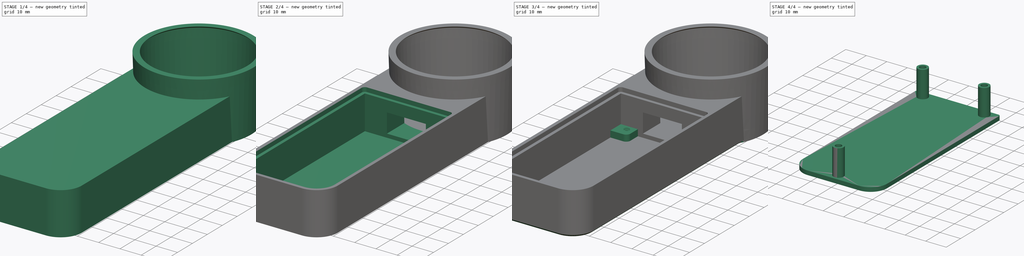
[diagram: build sequence overview — one tinted view per stage of 4, left to right]
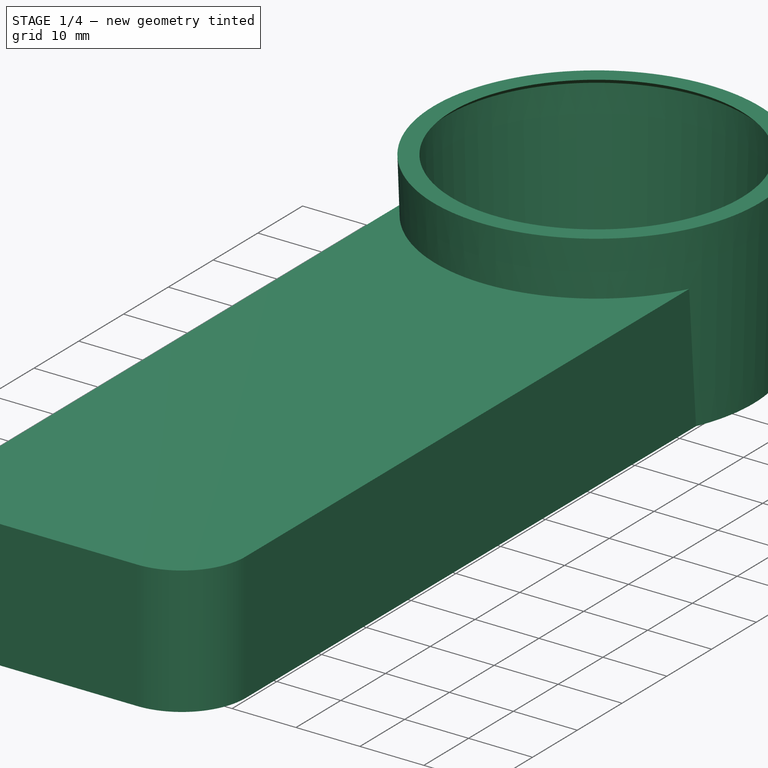
[diagram: stage 1 of 4 — iso view after this stage's code; geometry added in this stage tinted green]
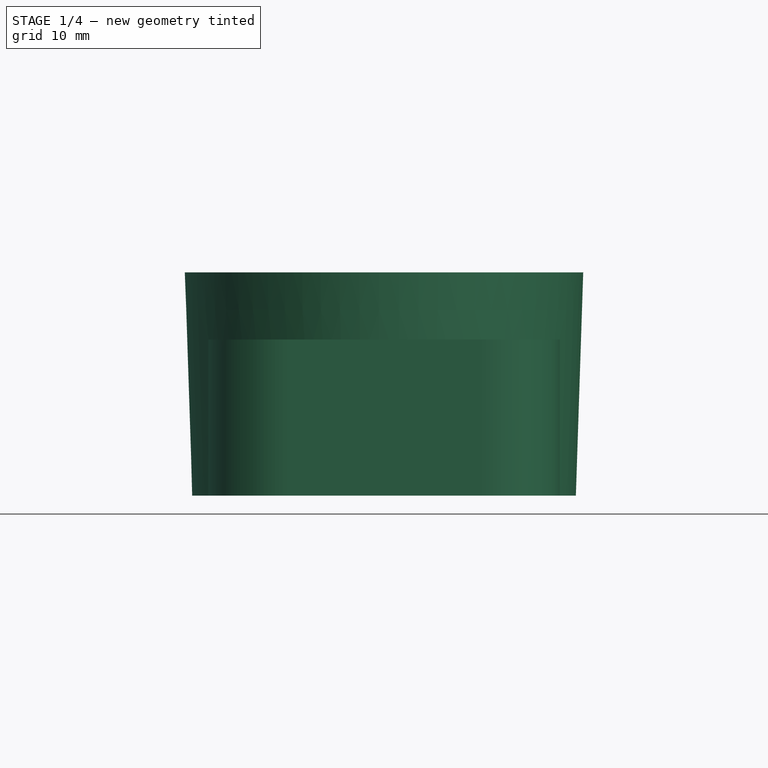
[diagram: stage 1 of 4 — front view after this stage's code; geometry added in this stage tinted green]
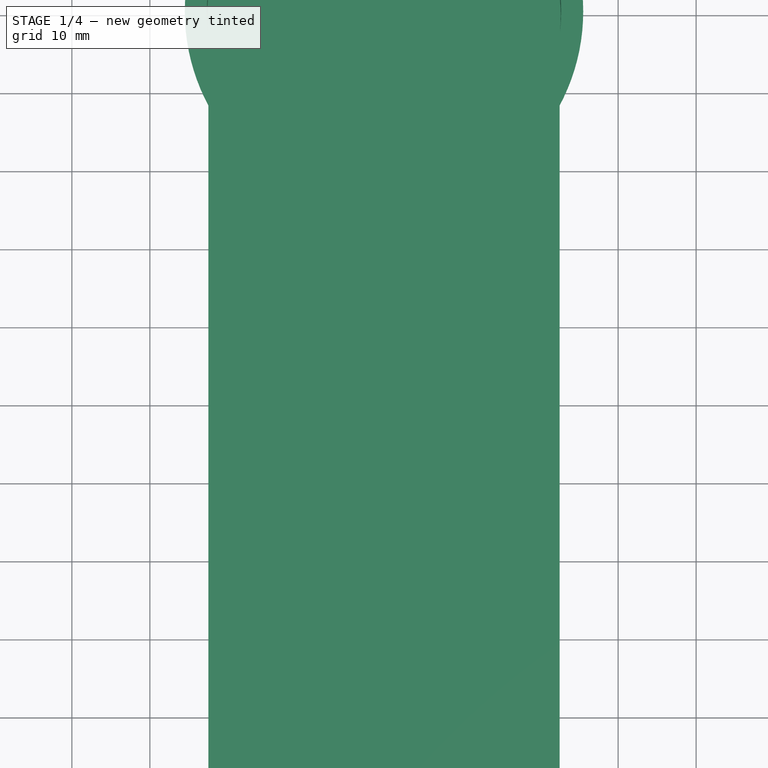
[diagram: stage 1 of 4 — top view after this stage's code; geometry added in this stage tinted green]
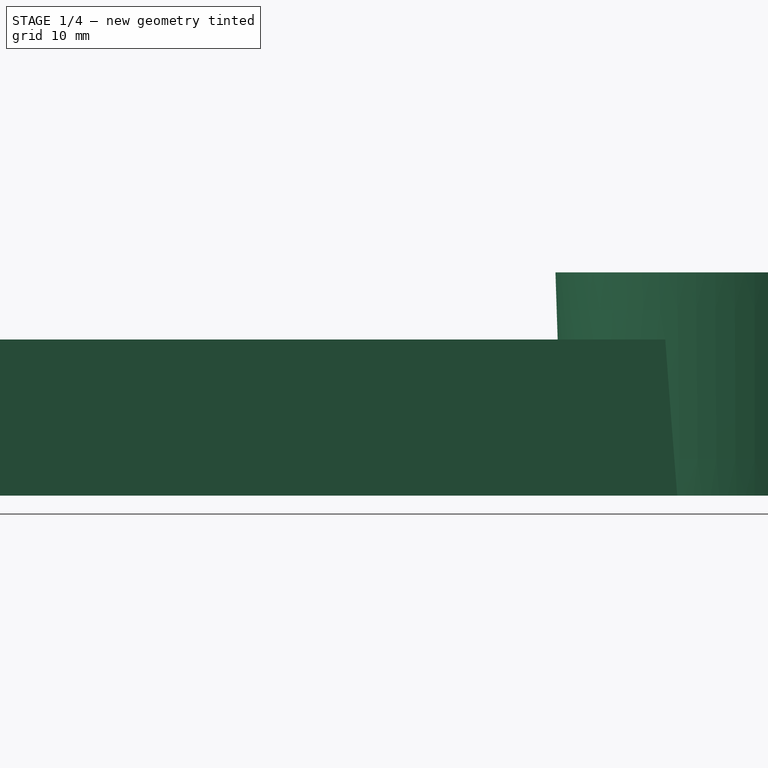
[diagram: stage 1 of 4 — right view after this stage's code; geometry added in this stage tinted green]
FCSTD DOCUMENT  (FreeCAD 1.0R39319 (Git))
Label: LogiLink_WallPlug
License: All rights reserved
LicenseURL: https://en.wikipedia.org/wiki/All_rights_reserved
objects: Sketcher::SketchObject×8, PartDesign::Pad×4, PartDesign::Pocket×3, PartDesign::SubShapeBinder×3, PartDesign::Plane×2, PartDesign::Hole×2, PartDesign::Body×2, Spreadsheet::Sheet×1, PartDesign::Revolution×1, PartDesign::Fillet×1, PartDesign::Chamfer×1
note: 59 computed .brp shape members not serialized (recipe doc carries the construction recipe); baked Part::Feature solids carry a one-line shape summary decoded from their .brp

FEATURE [Spreadsheet::Sheet] Spreadsheet  label="config"
  cells = A1='LogiLink Power Plug; D1='USB cutout; A2='diameter top; B2(d_top)==45 mm; D2='top; E2(usb_top)==2 mm; A3='diameter bottom; B3(d_bottom)==46.7 mm; D3='height; E3(usb_height)==8.5 mm; A4='height; B4(height)==25.8 mm; D4='width; E4(usb_width)==17.8 mm; A5='bottom step height; B5(height_step)==0.8 mm; A6='bottom step diameter; B6(d_step)==43 mm; D6='cutout clearance; E6(usb_clearance)==0.25 mm; A8='clearance; B8(clearance)==0.15 mm; A9='wall thickness; B9(thickness)==2 mm
FEATURE [Sketcher::SketchObject] Sketch
  ArcFitTolerance = 1e-06
  AttachmentSupport = -> [XZ_Plane]
  FullyConstrained = true
  MakeInternals = false
  MapMode = 5
  Placement = pos=(0,0,0) rot=(1,0,0;1.5708rad)
  expr: Constraints[13] = <<config>>.height
  expr: Constraints[14] = <<config>>.height_step
  expr: Constraints[18] = <<config>>.thickness
  expr: Constraints[20] = <<config>>.thickness
  expr: Constraints[21] = <<config>>.d_top / 2 + <<config>>.clearance
  expr: Constraints[22] = <<config>>.d_bottom / 2 + <<config>>.clearance
  sketch-geometry (8):
    g0: LineSegment StartX=0 StartY=0 StartZ=0 EndX=22.65 EndY=0 EndZ=0
    g1: LineSegment StartX=22.65 StartY=0 StartZ=0 EndX=23.5 EndY=25.8 EndZ=0
    g2: LineSegment StartX=23.5 StartY=25.8 StartZ=0 EndX=22.7 EndY=26.6 EndZ=0
    g3: LineSegment StartX=22.7 StartY=26.6 StartZ=0 EndX=25.5274 EndY=26.6 EndZ=0
    g4: LineSegment StartX=25.5274 StartY=26.6 StartZ=0 EndX=24.5852 EndY=-2 EndZ=0
    g5: LineSegment StartX=24.5852 StartY=-2 StartZ=0 EndX=0 EndY=-2 EndZ=0
    g6: LineSegment StartX=0 StartY=-2 StartZ=0 EndX=0 EndY=0 EndZ=0
    g7: LineSegment [constr] StartX=23.5 StartY=25.8 StartZ=0 EndX=25.4989 EndY=25.7341 EndZ=0
  constraints (23):
    c: Coincident(g-1,g0)
    c: PointOnObject(g0,g-1)
    c: Coincident(g0,g1)
    c: Coincident(g1,g2)
    c: Coincident(g2,g3)
    c: Horizontal(g3)
    c: Coincident(g3,g4)
    c: Coincident(g4,g5)
    c: PointOnObject(g5,g-2)
    c: Coincident(g5,g6)
    c: Coincident(g6,g0)
    c: Horizontal(g5)
    c: Parallel(g1,g4)
    c: DistanceY(g0,g1) = 25.8
    c: DistanceY(g1,g2) = 0.8
    c: Coincident(g7,g1)
    c: PointOnObject(g7,g4)
    c: Perpendicular(g4,g7)
    c: Distance(g7,g7) = 2
    c: Angle(g2,g-1) = 0.785398
    c: DistanceY(g6,g6) = 2
    c: DistanceX(g0,g0) = 22.65
    c: DistanceX(g0,g1) = 23.5
FEATURE [PartDesign::Revolution] Revolution
  Angle = 360
  Angle2 = 60
  Axis = (0,2e-16,1)
  Base = (0,0,0)
  Placement = pos=(0,0,0) rot=(1,0,0;1.5708rad)
  Profile = -> Sketch
  ReferenceAxis = -> Sketch [V_Axis]
  Refine = true
  Reversed = true
  Suppressed = false
  Type = 0
FEATURE [Sketcher::SketchObject] Sketch001  label="UsbCutoutSketch"
  ArcFitTolerance = 1e-06
  AttachmentSupport = -> [XZ_Plane]
  FullyConstrained = true
  MakeInternals = false
  MapMode = 5
  Placement = pos=(0,0,0) rot=(1,0,0;1.5708rad)
  expr: Constraints[10] = <<config>>.usb_height + 2 * <<config>>.usb_clearance
  expr: Constraints[11] = <<config>>.usb_width + 2 * <<config>>.usb_clearance
  expr: Constraints[12] = <<config>>.usb_top - <<config>>.usb_clearance
  sketch-geometry (5):
    g0: LineSegment StartX=-9.15 StartY=10.75 StartZ=0 EndX=-9.15 EndY=1.75 EndZ=0
    g1: LineSegment StartX=-9.15 StartY=1.75 StartZ=0 EndX=9.15 EndY=1.75 EndZ=0
    g2: LineSegment StartX=9.15 StartY=1.75 StartZ=0 EndX=9.15 EndY=10.75 EndZ=0
    g3: LineSegment StartX=9.15 StartY=10.75 StartZ=0 EndX=-9.15 EndY=10.75 EndZ=0
    g4: GeomPoint [constr] X=0 Y=6.25 Z=0
  constraints (13):
    c: Coincident(g0,g1)
    c: Coincident(g1,g2)
    c: Coincident(g2,g3)
    c: Coincident(g3,g0)
    c: Vertical(g0)
    c: Vertical(g2)
    c: Horizontal(g1)
    c: Horizontal(g3)
    c: Symmetric(g2,g0,g4)
    c: PointOnObject(g4,g-2)
    c: DistanceY(g2,g2) = 9
    c: DistanceX(g3,g3) = 18.3
    c: DistanceY(g-1,g1) = 1.75
FEATURE [PartDesign::Plane] DatumPlane  label="UsbStablizerDatumPlane"
  AttachmentOffset = pos=(0,0,29.65) rot=(0,0,1;0rad)
  AttachmentSupport = -> [XZ_Plane]
  Length = 61.3094
  MapMode = 5
  Placement = pos=(0,-29.65,6.6e-15) rot=(1,0,0;1.5708rad)
  ResizeMode = 0
  Width = 61.8644
  expr: .AttachmentOffset.Base.z = <<config>>.d_top / 2 + <<config>>.clearance + <<config>>.thickness + 5 mm
FEATURE [Sketcher::SketchObject] Sketch002
  ArcFitTolerance = 1e-06
  AttachmentSupport = -> [DatumPlane]
  FullyConstrained = true
  MakeInternals = false
  MapMode = 5
  Placement = pos=(0,-29.65,6.6e-15) rot=(1,0,0;1.5708rad)
  expr: Constraints[10] = <<config>>.thickness
  expr: Constraints[11] = <<config>>.usb_top + <<config>>.usb_height + 5 mm
  expr: Constraints[12] = <<config>>.usb_width + 10 mm
  sketch-geometry (5):
    g0: LineSegment StartX=-13.9 StartY=15.5 StartZ=0 EndX=-13.9 EndY=-2 EndZ=0
    g1: LineSegment StartX=-13.9 StartY=-2 StartZ=0 EndX=13.9 EndY=-2 EndZ=0
    g2: LineSegment StartX=13.9 StartY=-2 StartZ=0 EndX=13.9 EndY=15.5 EndZ=0
    g3: LineSegment StartX=13.9 StartY=15.5 StartZ=0 EndX=-13.9 EndY=15.5 EndZ=0
    g4: GeomPoint [constr] X=0 Y=6.75 Z=0
  constraints (13):
    c: Coincident(g0,g1)
    c: Coincident(g1,g2)
    c: Coincident(g2,g3)
    c: Coincident(g3,g0)
    c: Vertical(g0)
    c: Vertical(g2)
    c: Horizontal(g1)
    c: Horizontal(g3)
    c: Symmetric(g2,g0,g4)
    c: PointOnObject(g4,g-2)
    c: DistanceY(g1,g-1) = 2
    c: DistanceY(g-1,g2) = 15.5
    c: DistanceX(g3,g3) = 27.8
FEATURE [Sketcher::SketchObject] Sketch003
  ArcFitTolerance = 1e-06
  AttachmentSupport = -> [XY_Plane]
  FullyConstrained = true
  MakeInternals = false
  MapMode = 5
  expr: Constraints[10] = <<config>>.usb_width
  expr: Constraints[11] = <<config>>.d_bottom / 2
  sketch-geometry (15):
    g0: LineSegment StartX=-8.9 StartY=-59.35 StartZ=0 EndX=8.9 EndY=-59.35 EndZ=0
    g1: LineSegment StartX=8.9 StartY=-59.35 StartZ=0 EndX=8.9 EndY=-23.35 EndZ=0
    g2: LineSegment StartX=8.9 StartY=-23.35 StartZ=0 EndX=-8.9 EndY=-23.35 EndZ=0
    g3: LineSegment StartX=-8.9 StartY=-23.35 StartZ=0 EndX=-8.9 EndY=-59.35 EndZ=0
    g4: GeomPoint [constr] X=0 Y=-41.35 Z=0
    g5: LineSegment StartX=-14.25 StartY=-115.85 StartZ=0 EndX=14.25 EndY=-115.85 EndZ=0
    g6: LineSegment StartX=14.25 StartY=-115.85 StartZ=0 EndX=14.25 EndY=-64.35 EndZ=0
    g7: LineSegment StartX=14.25 StartY=-64.35 StartZ=0 EndX=-14.25 EndY=-64.35 EndZ=0
    g8: LineSegment StartX=-14.25 StartY=-64.35 StartZ=0 EndX=-14.25 EndY=-115.85 EndZ=0
    g9: GeomPoint [constr] X=0 Y=-90.1 Z=0
    g10: LineSegment StartX=-5 StartY=-64.35 StartZ=0 EndX=5 EndY=-64.35 EndZ=0
    g11: LineSegment StartX=5 StartY=-64.35 StartZ=0 EndX=5 EndY=-59.35 EndZ=0
    g12: LineSegment StartX=5 StartY=-59.35 StartZ=0 EndX=-5 EndY=-59.35 EndZ=0
    g13: LineSegment StartX=-5 StartY=-59.35 StartZ=0 EndX=-5 EndY=-64.35 EndZ=0
    g14: GeomPoint [constr] X=0 Y=-61.85 Z=0
  constraints (39):
    c: Coincident(g0,g1)
    c: Coincident(g1,g2)
    c: Coincident(g2,g3)
    c: Coincident(g3,g0)
    c: Horizontal(g0)
    c: Horizontal(g2)
    c: Vertical(g1)
    c: Vertical(g3)
    c: Symmetric(g2,g0,g4)
    c: PointOnObject(g4,g-2)
    c: DistanceX(g0,g0) = 17.8
    c: DistanceY(g1,g-1) = 23.35
    c: DistanceY(g1,g1) = 36
    c: Coincident(g5,g6)
    c: Coincident(g6,g7)
    c: Coincident(g7,g8)
    c: Coincident(g8,g5)
    c: Horizontal(g5)
    c: Horizontal(g7)
    c: Vertical(g6)
    c: Vertical(g8)
    c: Symmetric(g7,g5,g9)
    c: PointOnObject(g9,g-2)
    c: DistanceY(g6,g6) = 51.5
    c: DistanceX(g7,g7) = 28.5
    c: Coincident(g10,g11)
    c: Coincident(g11,g12)
    c: Coincident(g12,g13)
    c: Coincident(g13,g10)
    c: Horizontal(g10)
    c: Horizontal(g12)
    c: Vertical(g11)
    c: Vertical(g13)
    c: Symmetric(g12,g10,g14)
    c: PointOnObject(g14,g-2)
    c: PointOnObject(g11,g0)
    c: DistanceX(g10,g10) = 10
    c: PointOnObject(g10,g7)
    c: DistanceY(g11,g11) = 5
FEATURE [PartDesign::Plane] DatumPlane001
  AttachmentOffset = pos=(0,0,120.5) rot=(0,0,1;0rad)
  AttachmentSupport = -> [XZ_Plane]
  Length = 61.3094
  MapMode = 5
  Placement = pos=(0,-120.5,2.68e-14) rot=(1,0,0;1.5708rad)
  ResizeMode = 0
  Width = 61.8644
  expr: .AttachmentOffset.Base.z = <<config>>.d_top / 2 + 98 mm
FEATURE [Sketcher::SketchObject] Sketch004
  ArcFitTolerance = 1e-06
  AttachmentSupport = -> [DatumPlane001]
  FullyConstrained = true
  MakeInternals = false
  MapMode = 5
  Placement = pos=(0,-120.5,2.68e-14) rot=(1,0,0;1.5708rad)
  expr: Constraints[11] = <<config>>.thickness
  expr: Constraints[9] = <<config>>.d_top
  sketch-geometry (5):
    g0: LineSegment StartX=-22.5 StartY=18 StartZ=0 EndX=-22.5 EndY=-2 EndZ=0
    g1: LineSegment StartX=-22.5 StartY=-2 StartZ=0 EndX=22.5 EndY=-2 EndZ=0
    g2: LineSegment StartX=22.5 StartY=-2 StartZ=0 EndX=22.5 EndY=18 EndZ=0
    g3: LineSegment StartX=22.5 StartY=18 StartZ=0 EndX=-22.5 EndY=18 EndZ=0
    g4: GeomPoint [constr] X=-3e-16 Y=8 Z=0
  constraints (13):
    c: Coincident(g0,g1)
    c: Coincident(g1,g2)
    c: Coincident(g2,g3)
    c: Coincident(g3,g0)
    c: Vertical(g0)
    c: Vertical(g2)
    c: Horizontal(g1)
    c: Horizontal(g3)
    c: Symmetric(g2,g0,g4)
    c: Distance(g0,g2) = 45
    c: PointOnObject(g4,g-2)
    c: DistanceY(g1,g-1) = 2
    c: DistanceY(g2,g2) = 20
FEATURE [PartDesign::Pad] Pad
  BaseFeature = -> Revolution
  Direction = (0,-1,2e-16)
  Length = 10
  Length2 = 10
  Placement = pos=(0,0,0) rot=(1,0,0;1.5708rad)
  Profile = -> Sketch004
  ReferenceAxis = -> Sketch004 [N_Axis]
  Refine = true
  Reversed = true
  Suppressed = false
  Type = 2
FEATURE [PartDesign::Fillet] Fillet
  Base = -> Pad [Edge13,Edge18]
  BaseFeature = -> Pad
  Placement = pos=(0,0,0) rot=(1,0,0;1.5708rad)
  Radius = 10
  Refine = true
  SupportTransform = false
  Suppressed = false
  UseAllEdges = false
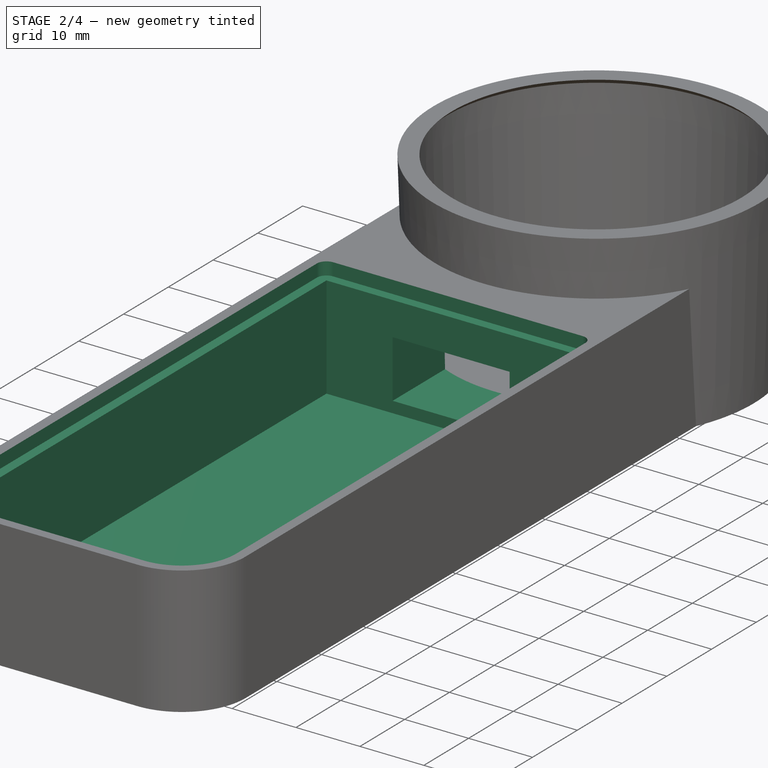
[diagram: stage 2 of 4 — iso view after this stage's code; geometry added in this stage tinted green]
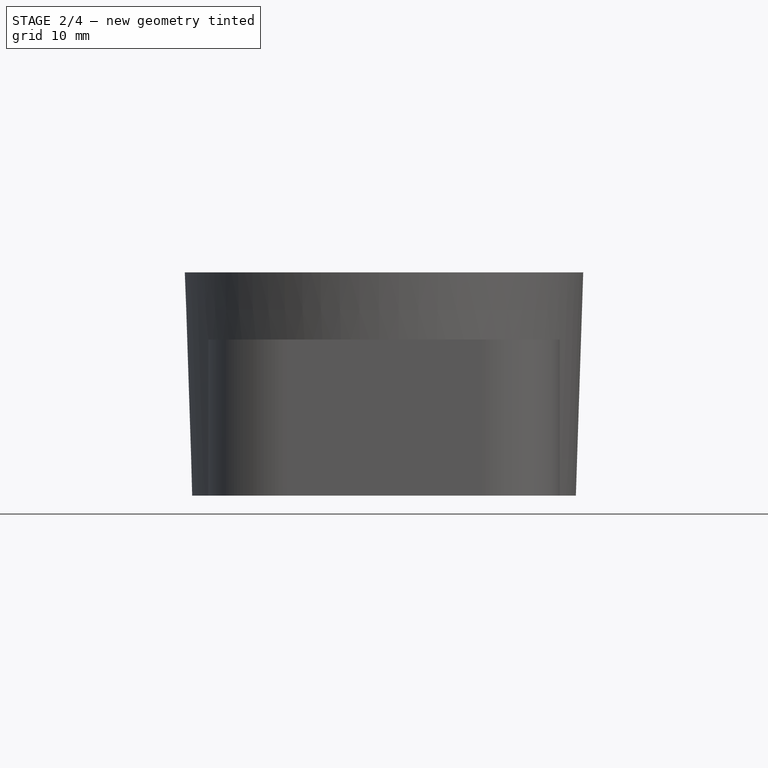
[diagram: stage 2 of 4 — front view after this stage's code; geometry added in this stage tinted green]
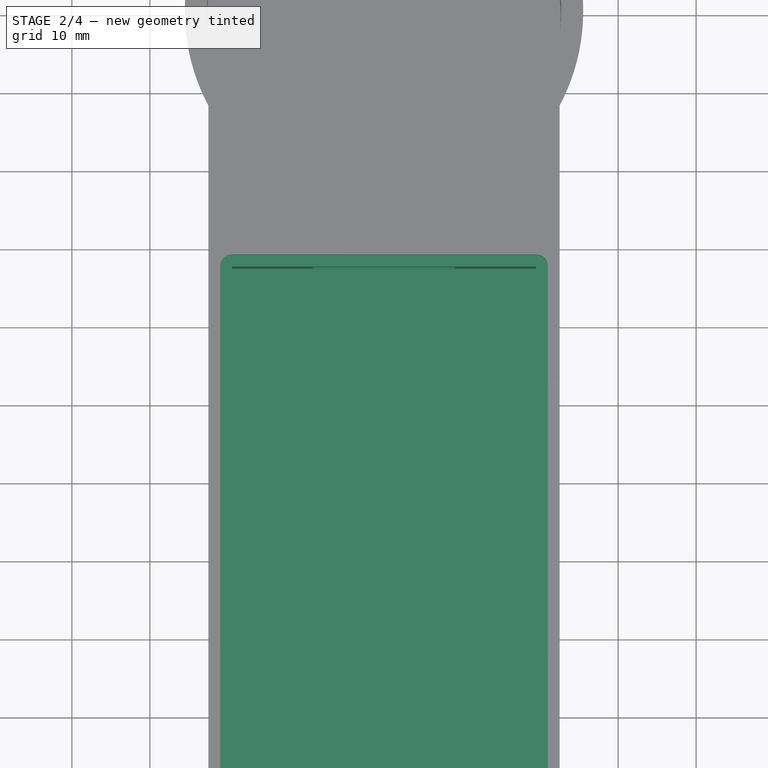
[diagram: stage 2 of 4 — top view after this stage's code; geometry added in this stage tinted green]
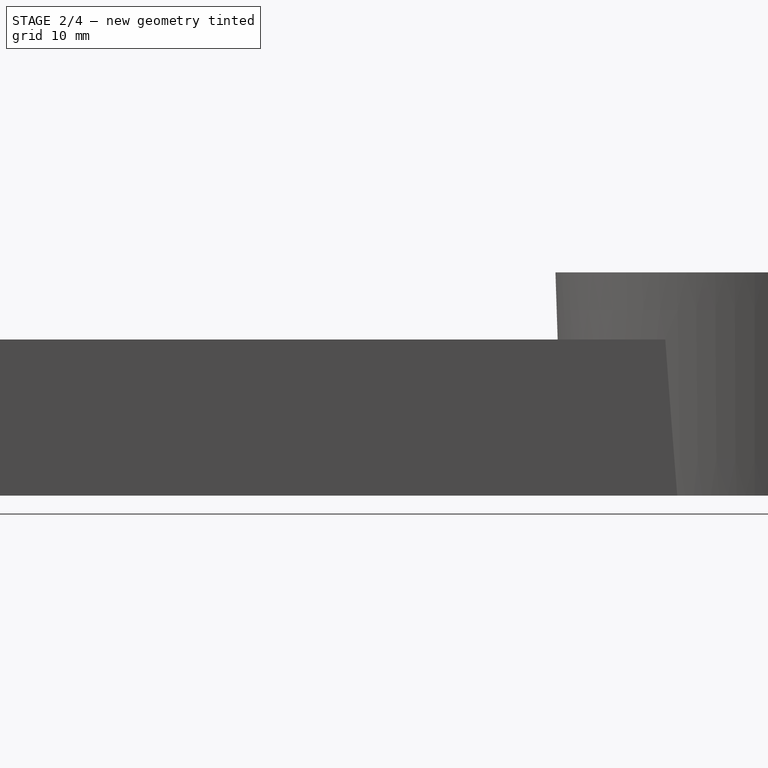
[diagram: stage 2 of 4 — right view after this stage's code; geometry added in this stage tinted green]
FEATURE [Sketcher::SketchObject] Sketch005
  ArcFitTolerance = 1e-06
  AttachmentSupport = -> [XY_Plane]
  ExternalGeometry = -> [Fillet]
  FullyConstrained = true
  MakeInternals = false
  MapMode = 5
  expr: Constraints[8] = <<config>>.d_top / 2 + 10 mm
  sketch-geometry (9):
    g0: LineSegment StartX=-12.5 StartY=-117.5 StartZ=0 EndX=12.5 EndY=-117.5 EndZ=0
    g1: LineSegment StartX=19.5 StartY=-110.5 StartZ=0 EndX=19.5 EndY=-32.5 EndZ=0
    g2: LineSegment StartX=19.5 StartY=-32.5 StartZ=0 EndX=-19.5 EndY=-32.5 EndZ=0
    g3: LineSegment StartX=-19.5 StartY=-32.5 StartZ=0 EndX=-19.5 EndY=-110.5 EndZ=0
    g4: GeomPoint [constr] X=0 Y=-75 Z=0
    g5: ArcOfCircle CenterX=-12.5 CenterY=-110.5 CenterZ=0 NormalX=0 NormalY=0 NormalZ=1 AngleXU=0 Radius=7 StartAngle=3.14159 EndAngle=4.71239
    g6: GeomPoint [constr] X=-19.5 Y=-117.5 Z=0
    g7: ArcOfCircle CenterX=12.5 CenterY=-110.5 CenterZ=0 NormalX=0 NormalY=0 NormalZ=1 AngleXU=0 Radius=7 StartAngle=4.71239 EndAngle=6.28319
    g8: GeomPoint [constr] X=19.5 Y=-117.5 Z=0
  constraints (21):
    c: Coincident(g1,g2)
    c: Coincident(g2,g3)
    c: Horizontal(g0)
    c: Horizontal(g2)
    c: Vertical(g1)
    c: Vertical(g3)
    c: Symmetric(g2,g6,g4)
    c: PointOnObject(g4,g-2)
    c: DistanceY(g1,g-1) = 32.5
    c: DistanceY(g-5,g8) = 3
    c: DistanceX(g8,g-4) = 3
    c: PointOnObject(g6,g3)
    c: PointOnObject(g6,g0)
    c: Tangent(g3,g5) = -1.5708
    c: Tangent(g0,g5) = -1.5708
    c: PointOnObject(g8,g1)
    c: PointOnObject(g8,g0)
    c: Tangent(g1,g7) = -1.5708
    c: Tangent(g0,g7) = -1.5708
    c: Equal(g5,g7)
    c: Radius(g5) = 7
FEATURE [PartDesign::Pocket] Pocket
  BaseFeature = -> Fillet
  Direction = (0,0,-1)
  Length = 5
  Length2 = 5
  Placement = pos=(0,0,0) rot=(1,0,0;1.5708rad)
  Profile = -> Sketch005
  ReferenceAxis = -> Sketch005 [N_Axis]
  Refine = true
  Reversed = true
  Suppressed = false
  Type = 1
FEATURE [PartDesign::Pocket] Pocket001
  BaseFeature = -> Pocket
  Direction = (0,1,-2e-16)
  Length = 40
  Length2 = 5
  Placement = pos=(0,0,0) rot=(1,0,0;1.5708rad)
  Profile = -> Sketch001
  ReferenceAxis = -> Sketch001 [N_Axis]
  Refine = true
  Reversed = true
  Suppressed = false
  Type = 0
FEATURE [PartDesign::SubShapeBinder] Binder
  BindCopyOnChange = 0
  BindMode = 0
  ClaimChildren = false
  Context = -> Body [Binder.]
  Fuse = false
  MakeFace = true
  Offset = 1.5
  OffsetFill = false
  OffsetIntersection = false
  OffsetJoinType = 0
  OffsetOpenResult = false
  PartialLoad = false
  Placement = pos=(0,0,18) rot=(0,0,1;0rad)
  Refine = true
  Relative = true
  Support = -> [Sketch005]
  _Version = 2
FEATURE [PartDesign::Pocket] Pocket002
  BaseFeature = -> Pocket001
  Direction = (0,0,-1)
  Length = 2
  Length2 = 5
  Placement = pos=(0,0,0) rot=(1,0,0;1.5708rad)
  Profile = -> Binder
  Refine = true
  Suppressed = false
  Type = 0
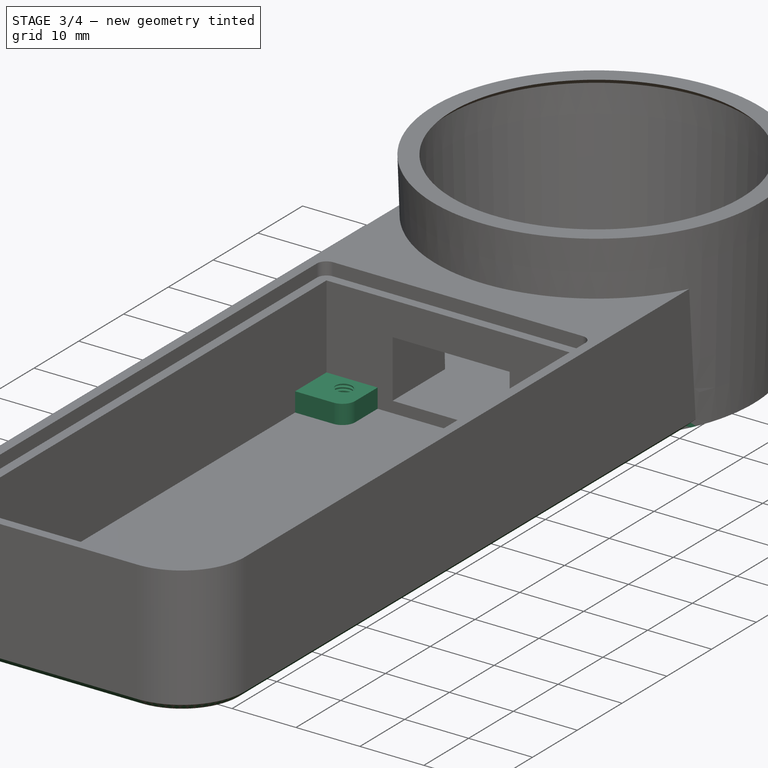
[diagram: stage 3 of 4 — iso view after this stage's code; geometry added in this stage tinted green]
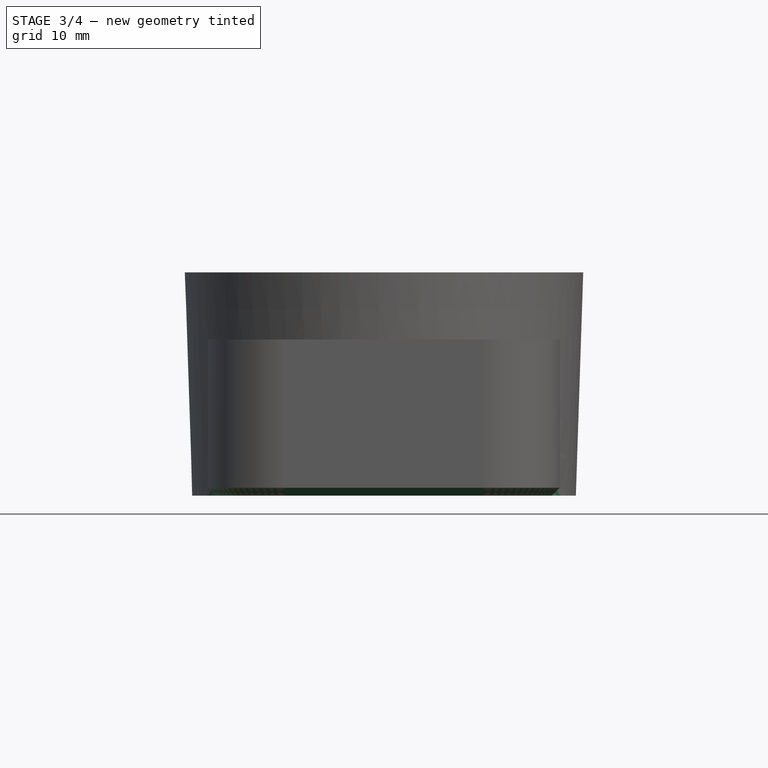
[diagram: stage 3 of 4 — front view after this stage's code; geometry added in this stage tinted green]
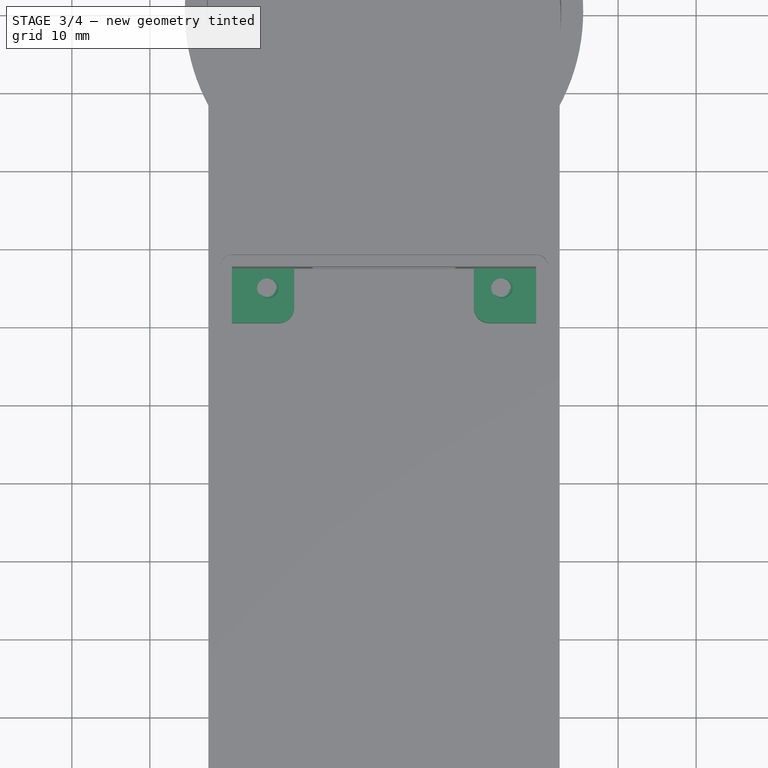
[diagram: stage 3 of 4 — top view after this stage's code; geometry added in this stage tinted green]
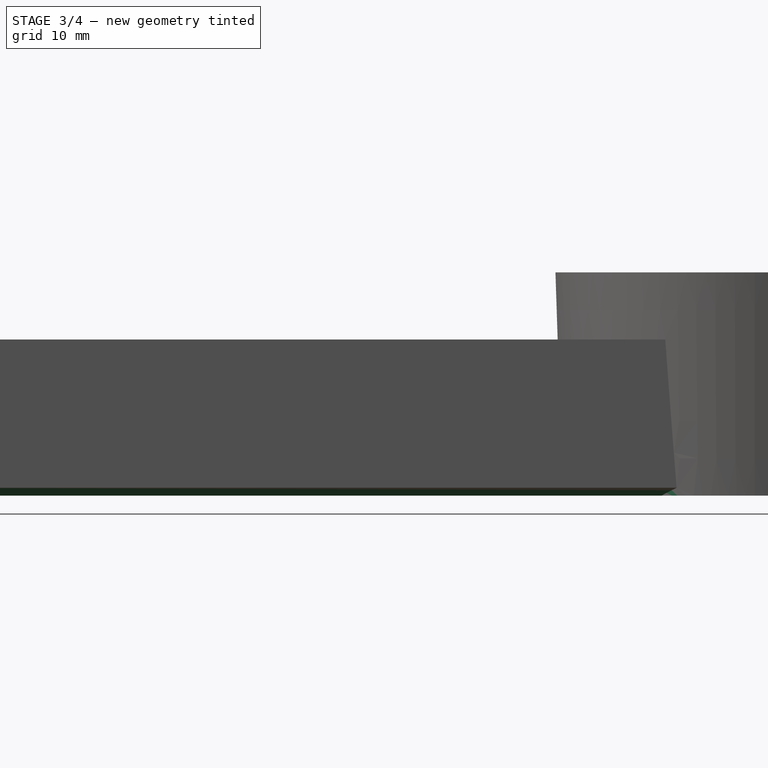
[diagram: stage 3 of 4 — right view after this stage's code; geometry added in this stage tinted green]
FEATURE [Sketcher::SketchObject] Sketch006
  ArcFitTolerance = 1e-06
  AttachmentSupport = -> [XY_Plane]
  ExternalGeometry = -> [Pocket002]
  FullyConstrained = true
  MakeInternals = false
  MapMode = 5
  sketch-geometry (3):
    g0: Circle CenterX=0 CenterY=-115 CenterZ=0 NormalX=0 NormalY=0 NormalZ=1 AngleXU=0 Radius=2.5
    g1: Circle CenterX=15 CenterY=-35 CenterZ=0 NormalX=0 NormalY=0 NormalZ=1 AngleXU=0 Radius=2.5
    g2: Circle CenterX=-15 CenterY=-35 CenterZ=0 NormalX=0 NormalY=0 NormalZ=1 AngleXU=0 Radius=2.5
  constraints (8):
    c: Diameter(g0) = 5
    c: PointOnObject(g0,g-2)
    c: Equal(g2,g0)
    c: Equal(g1,g0)
    c: Symmetric(g2,g1,g-2)
    c: DistanceX(g2,g1) = 30
    c: DistanceY(g0,g1) = 80
    c: Tangent(g0,g-3)
FEATURE [Sketcher::SketchObject] Sketch007
  ArcFitTolerance = 1e-06
  AttachmentSupport = -> [XY_Plane]
  ExternalGeometry = -> [Pocket002]
  FullyConstrained = true
  MakeInternals = false
  MapMode = 5
  sketch-geometry (21):
    g0: LineSegment StartX=-11.5 StartY=-32.5 StartZ=0 EndX=-19.5 EndY=-32.5 EndZ=0
    g1: LineSegment StartX=-19.5 StartY=-32.5 StartZ=0 EndX=-19.5 EndY=-39.5 EndZ=0
    g2: LineSegment StartX=-19.5 StartY=-39.5 StartZ=0 EndX=-13.5 EndY=-39.5 EndZ=0
    g3: LineSegment StartX=-11.5 StartY=-37.5 StartZ=0 EndX=-11.5 EndY=-32.5 EndZ=0
    g4: LineSegment StartX=11.5 StartY=-32.5 StartZ=0 EndX=11.5 EndY=-37.5 EndZ=0
    g5: LineSegment StartX=13.5 StartY=-39.5 StartZ=0 EndX=19.5 EndY=-39.5 EndZ=0
    g6: LineSegment StartX=19.5 StartY=-39.5 StartZ=0 EndX=19.5 EndY=-32.5 EndZ=0
    g7: LineSegment StartX=19.5 StartY=-32.5 StartZ=0 EndX=11.5 EndY=-32.5 EndZ=0
    g8: LineSegment StartX=-6 StartY=-114.5 StartZ=0 EndX=-6 EndY=-117.5 EndZ=0
    g9: LineSegment StartX=-6 StartY=-117.5 StartZ=0 EndX=6 EndY=-117.5 EndZ=0
    g10: LineSegment StartX=6 StartY=-117.5 StartZ=0 EndX=6 EndY=-114.5 EndZ=0
    g11: LineSegment StartX=4 StartY=-112.5 StartZ=0 EndX=-4 EndY=-112.5 EndZ=0
    g12: GeomPoint [constr] X=0 Y=-115 Z=0
    g13: ArcOfCircle CenterX=-4 CenterY=-114.5 CenterZ=0 NormalX=0 NormalY=0 NormalZ=1 AngleXU=0 Radius=2 StartAngle=1.5708 EndAngle=3.14159
    g14: GeomPoint [constr] X=-6 Y=-112.5 Z=0
    g15: ArcOfCircle CenterX=4 CenterY=-114.5 CenterZ=0 NormalX=0 NormalY=0 NormalZ=1 AngleXU=0 Radius=2 StartAngle=2.7e-15 EndAngle=1.5708
    g16: GeomPoint [constr] X=6 Y=-112.5 Z=0
    g17: ArcOfCircle CenterX=-13.5 CenterY=-37.5 CenterZ=0 NormalX=0 NormalY=0 NormalZ=1 AngleXU=0 Radius=2 StartAngle=4.71239 EndAngle=6.28319
    g18: GeomPoint [constr] X=-11.5 Y=-39.5 Z=0
    g19: ArcOfCircle CenterX=13.5 CenterY=-37.5 CenterZ=0 NormalX=0 NormalY=0 NormalZ=1 AngleXU=0 Radius=2 StartAngle=3.14159 EndAngle=4.71239
    g20: GeomPoint [constr] X=11.5 Y=-39.5 Z=0
  constraints (53):
    c: Coincident(g0,g1)
    c: Coincident(g1,g2)
    c: Coincident(g3,g0)
    c: Horizontal(g0)
    c: Horizontal(g2)
    c: Vertical(g1)
    c: Vertical(g3)
    c: PointOnObject(g0,g-4)
    c: PointOnObject(g1,g-3)
    c: Coincident(g5,g6)
    c: Coincident(g6,g7)
    c: Coincident(g7,g4)
    c: Vertical(g4)
    c: Vertical(g6)
    c: Horizontal(g5)
    c: Horizontal(g7)
    c: PointOnObject(g4,g-4)
    c: PointOnObject(g5,g-5)
    c: DistanceY(g18,g3) = 7
    c: DistanceX(g2,g18) = 8
    c: Coincident(g8,g9)
    c: Coincident(g9,g10)
    c: Vertical(g8)
    c: Vertical(g10)
    c: Horizontal(g9)
    c: Horizontal(g11)
    c: Symmetric(g10,g14,g12)
    c: PointOnObject(g12,g-2)
    c: PointOnObject(g9,g-6)
    c: DistanceY(g10,g16) = 5
    c: DistanceX(g9,g9) = 12
    c: PointOnObject(g14,g11)
    c: PointOnObject(g14,g8)
    c: Tangent(g11,g13) = -1.5708
    c: Tangent(g8,g13) = -1.5708
    c: PointOnObject(g16,g11)
    c: PointOnObject(g16,g10)
    c: Tangent(g11,g15) = -1.5708
    c: Tangent(g10,g15) = -1.5708
    c: Equal(g13,g15)
    c: Radius(g13) = 2
    c: PointOnObject(g18,g3)
    c: PointOnObject(g18,g2)
    c: Tangent(g3,g17) = -1.5708
    c: Tangent(g2,g17) = -1.5708
    c: PointOnObject(g20,g4)
    c: PointOnObject(g20,g5)
    c: Tangent(g4,g19) = -1.5708
    c: Tangent(g5,g19) = -1.5708
    c: Equal(g17,g19)
    c: Equal(g15,g19)
    c: Equal(g2,g5)
    c: Equal(g3,g4)
FEATURE [PartDesign::Pad] Pad001
  BaseFeature = -> Pocket002
  Direction = (0,0,1)
  Length = 3
  Length2 = 10
  Placement = pos=(0,0,0) rot=(1,0,0;1.5708rad)
  Profile = -> Sketch007
  ReferenceAxis = -> Sketch007 [N_Axis]
  Refine = true
  Suppressed = false
  Type = 0
FEATURE [PartDesign::Hole] Hole
  BaseFeature = -> Pad001
  CustomThreadClearance = 0
  Depth = 25
  DepthType = 0
  Diameter = 2.52
  DrillForDepth = false
  DrillPoint = 1
  DrillPointAngle = 118
  HoleCutCountersinkAngle = 90
  HoleCutCustomValues = false
  HoleCutDepth = 0
  HoleCutDiameter = 6.1
  HoleCutType = 0
  ModelThread = true
  Placement = pos=(0,0,0) rot=(1,0,0;1.5708rad)
  Profile = -> Sketch006
  Refine = true
  Reversed = true
  Suppressed = false
  Tapered = false
  TaperedAngle = 90
  ThreadClass = 0
  ThreadDepth = 25
  ThreadDepthType = 0
  ThreadDirection = 0
  ThreadFit = 0
  ThreadSize = 9
  ThreadType = 1
  Threaded = true
  UseCustomThreadClearance = false
FEATURE [PartDesign::Body] Body001  label="Cover"
  AllowCompound = false
  Group = -> [Binder001,Binder002,Pad002,Pad003,Hole001]
  Origin = -> Origin001
  Tip = -> Hole001
FEATURE [PartDesign::Chamfer] Chamfer
  Angle = 45
  Base = -> Hole [Edge4,Edge27,Edge25]
  BaseFeature = -> Hole
  ChamferType = 0
  FlipDirection = false
  Placement = pos=(0,0,0) rot=(1,0,0;1.5708rad)
  Refine = true
  Size = 1
  Size2 = 1
  SupportTransform = false
  Suppressed = false
  UseAllEdges = false
FEATURE [PartDesign::Body] Body
  AllowCompound = false
  Group = -> [Sketch,Revolution,Sketch001,DatumPlane,Sketch002,Sketch003,DatumPlane001,Sketch004,Pad,Fillet,Sketch005,Pocket,Pocket001,Binder,Pocket002,Sketch006,Sketch007,Pad001,Hole,Chamfer]
  Origin = -> Origin
  Tip = -> Chamfer
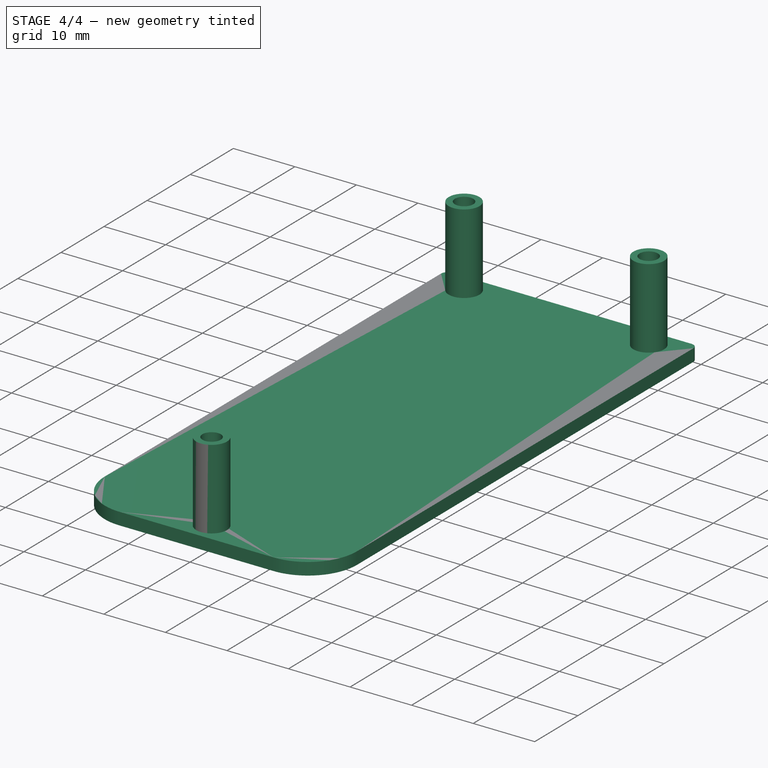
[diagram: stage 4 of 4 — iso view after this stage's code; geometry added in this stage tinted green]
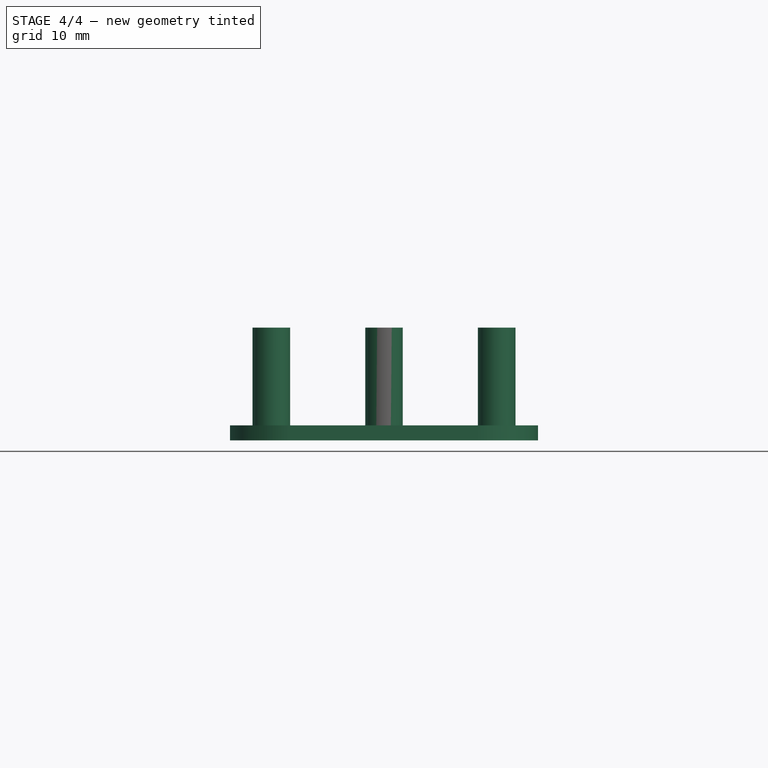
[diagram: stage 4 of 4 — front view after this stage's code; geometry added in this stage tinted green]
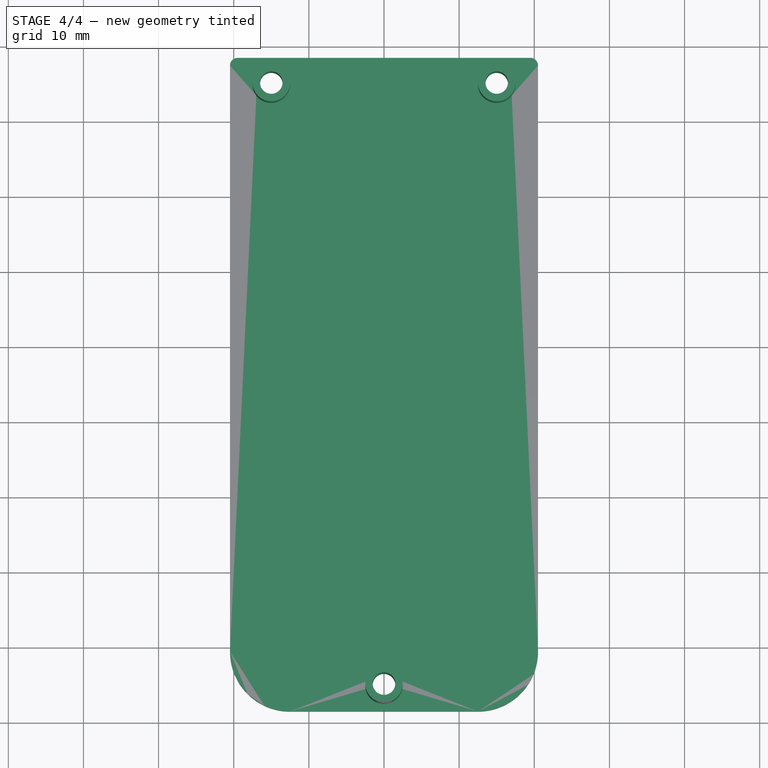
[diagram: stage 4 of 4 — top view after this stage's code; geometry added in this stage tinted green]
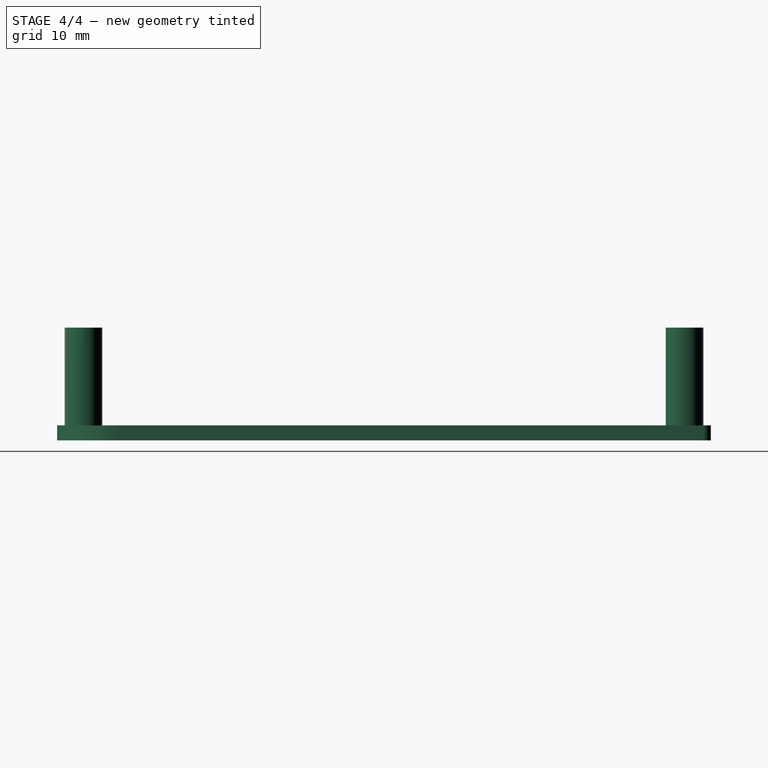
[diagram: stage 4 of 4 — right view after this stage's code; geometry added in this stage tinted green]
FEATURE [PartDesign::SubShapeBinder] Binder001
  BindCopyOnChange = 0
  BindMode = 0
  ClaimChildren = false
  Context = -> Body001 [Binder001.]
  Fuse = false
  MakeFace = true
  Offset = 1
  OffsetFill = false
  OffsetIntersection = false
  OffsetJoinType = 0
  OffsetOpenResult = false
  PartialLoad = false
  Refine = true
  Relative = true
  Support = -> [Body[Sketch005.]]
  _Version = 2
FEATURE [PartDesign::SubShapeBinder] Binder002
  BindCopyOnChange = 0
  BindMode = 0
  ClaimChildren = false
  Context = -> Body001 [Binder002.]
  Fuse = false
  MakeFace = true
  OffsetFill = false
  OffsetIntersection = false
  OffsetJoinType = 0
  OffsetOpenResult = false
  PartialLoad = false
  Refine = true
  Relative = true
  Support = -> [Body[Sketch006.]]
  _Version = 2
FEATURE [PartDesign::Pad] Pad002
  Direction = (0,0,1)
  Length = 2
  Length2 = 10
  Profile = -> Binder001
  Refine = true
  Suppressed = false
  Type = 0
FEATURE [PartDesign::Pad] Pad003
  BaseFeature = -> Pad002
  Direction = (0,0,1)
  Length = 15
  Length2 = 10
  Profile = -> Binder002
  Refine = true
  Suppressed = false
  Type = 0
  expr: Length = 13 + 2
FEATURE [PartDesign::Hole] Hole001
  BaseFeature = -> Pad003
  CustomThreadClearance = 0
  Depth = 40
  DepthType = 0
  Diameter = 3
  DrillForDepth = false
  DrillPoint = 1
  DrillPointAngle = 118
  HoleCutCountersinkAngle = 90
  HoleCutCustomValues = false
  HoleCutDepth = 0
  HoleCutDiameter = 6.5
  HoleCutType = 2
  ModelThread = false
  Profile = -> Binder002
  Refine = true
  Reversed = true
  Suppressed = false
  Tapered = false
  TaperedAngle = 90
  ThreadClass = 0
  ThreadDepth = 40
  ThreadDepthType = 0
  ThreadDirection = 0
  ThreadFit = 0
  ThreadSize = 0
  ThreadType = 0
  Threaded = false
  UseCustomThreadClearance = false
  expr: Depth = 40
  expr: HoleCutDiameter = 6.5
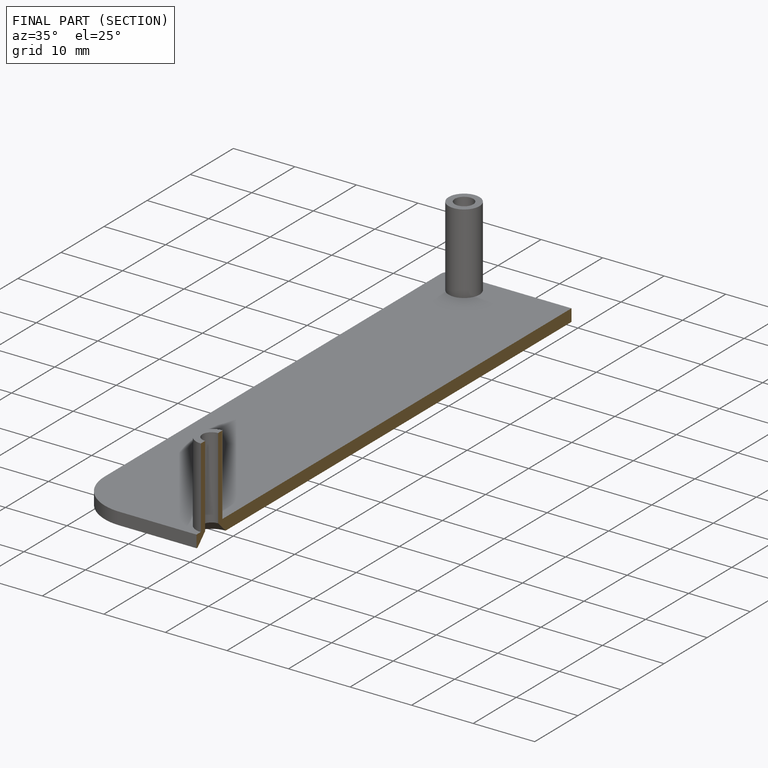
[diagram: finished part — half-section view (interior)]
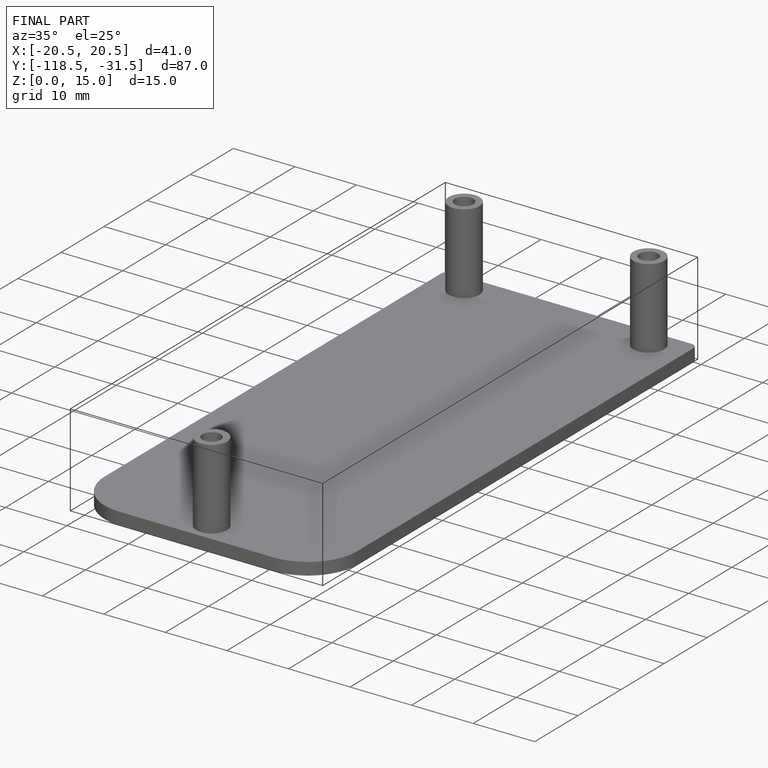
[diagram: finished part — iso view with bounding-box wireframe]
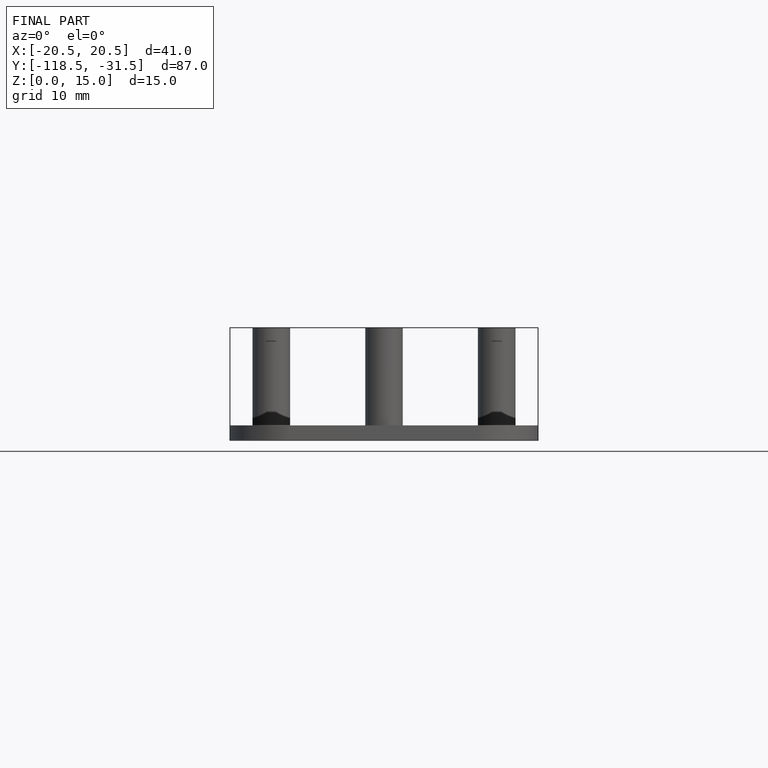
[diagram: finished part — front view with bounding-box wireframe]
